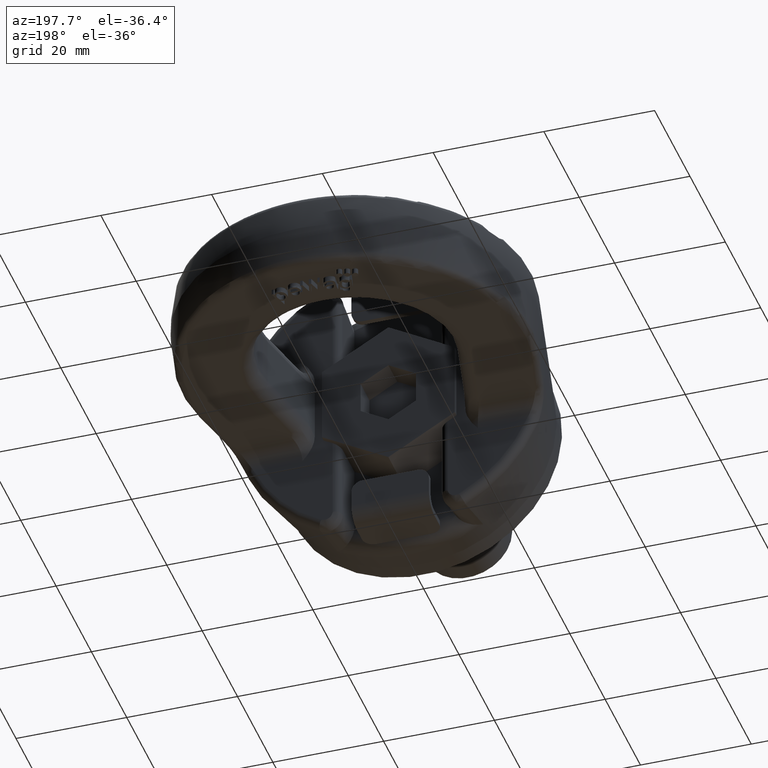
[diagram: clean part render]
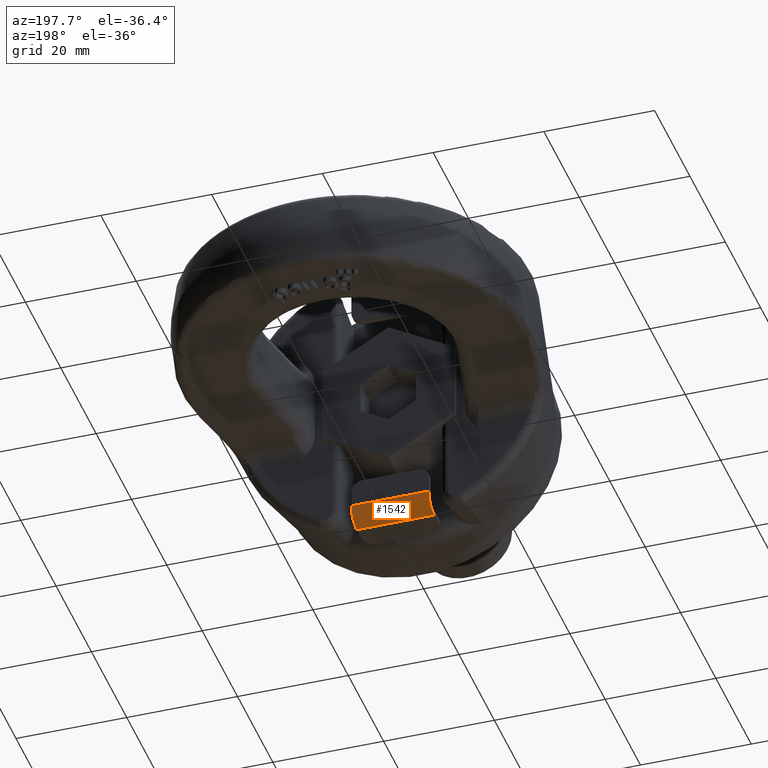
[diagram: same view with one face highlighted and labeled with its STEP entity id]
A machine part, auxiliary view. The second image highlights one B-rep face of the part: STEP entity #1542.
In plain terms, the highlighted cylindrical surface (edge-blend (fillet) strip) has radius 3 mm, axis along (1, 0, 0).
Its self-contained STEP definition (entity closure, byte-faithful):
#1084=CYLINDRICAL_SURFACE('',#5374,3.);
#1303=FACE_OUTER_BOUND('',#2080,.T.);
#1542=ADVANCED_FACE('',(#1303),#1084,.T.);
#1745=CIRCLE('',#5357,3.);
#1746=CIRCLE('',#5360,3.);
#2080=EDGE_LOOP('',(#3852,#3853,#3854,#3855));
#2364=LINE('',#9684,#2700);
#2365=LINE('',#9687,#2701);
#2700=VECTOR('',#6228,1.);
#2701=VECTOR('',#6233,1.);
#3852=ORIENTED_EDGE('',*,*,#4833,.T.);
#3853=ORIENTED_EDGE('',*,*,#4851,.F.);
#3854=ORIENTED_EDGE('',*,*,#4825,.F.);
#3855=ORIENTED_EDGE('',*,*,#4849,.T.);
#4242=VERTEX_POINT('',#9623);
#4249=VERTEX_POINT('',#9636);
#4257=VERTEX_POINT('',#9654);
#4258=VERTEX_POINT('',#9656);
#4825=EDGE_CURVE('',#4249,#4242,#1745,.T.);
#4833=EDGE_CURVE('',#4258,#4257,#1746,.T.);
#4849=EDGE_CURVE('',#4249,#4258,#2364,.T.);
#4851=EDGE_CURVE('',#4242,#4257,#2365,.T.);
#5357=AXIS2_PLACEMENT_3D('',#9637,#6182,#6183);
#5360=AXIS2_PLACEMENT_3D('',#9655,#6195,#6196);
#5374=AXIS2_PLACEMENT_3D('',#9688,#6234,#6235);
#6182=DIRECTION('',(-1.,0.,-2.34291072916505E-15));
#6183=DIRECTION('',(2.31296463463574E-15,0.,-1.));
#6195=DIRECTION('',(-1.,0.,-2.34291072916505E-15));
#6196=DIRECTION('',(2.31296463463574E-15,0.,-1.));
#6228=DIRECTION('',(1.,0.,2.34291072916505E-15));
#6233=DIRECTION('',(1.,0.,2.34291072916505E-15));
#6234=DIRECTION('',(1.,0.,2.34291072916505E-15));
#6235=DIRECTION('',(2.31296463463574E-15,0.,-1.));
#9623=CARTESIAN_POINT('',(-6.99999999999994,16.,-25.));
#9636=CARTESIAN_POINT('',(-6.99999999999995,19.,-22.));
#9637=CARTESIAN_POINT('',(-6.99999999999995,16.,-22.));
#9654=CARTESIAN_POINT('',(7.00000000000006,16.,-25.));
#9655=CARTESIAN_POINT('',(7.00000000000005,16.,-22.));
#9656=CARTESIAN_POINT('',(7.00000000000005,19.,-22.));
#9684=CARTESIAN_POINT('',(-6.99999999999995,19.,-22.));
#9687=CARTESIAN_POINT('',(-6.99999999999994,16.,-25.));
#9688=CARTESIAN_POINT('',(-6.99999999999995,16.,-22.));